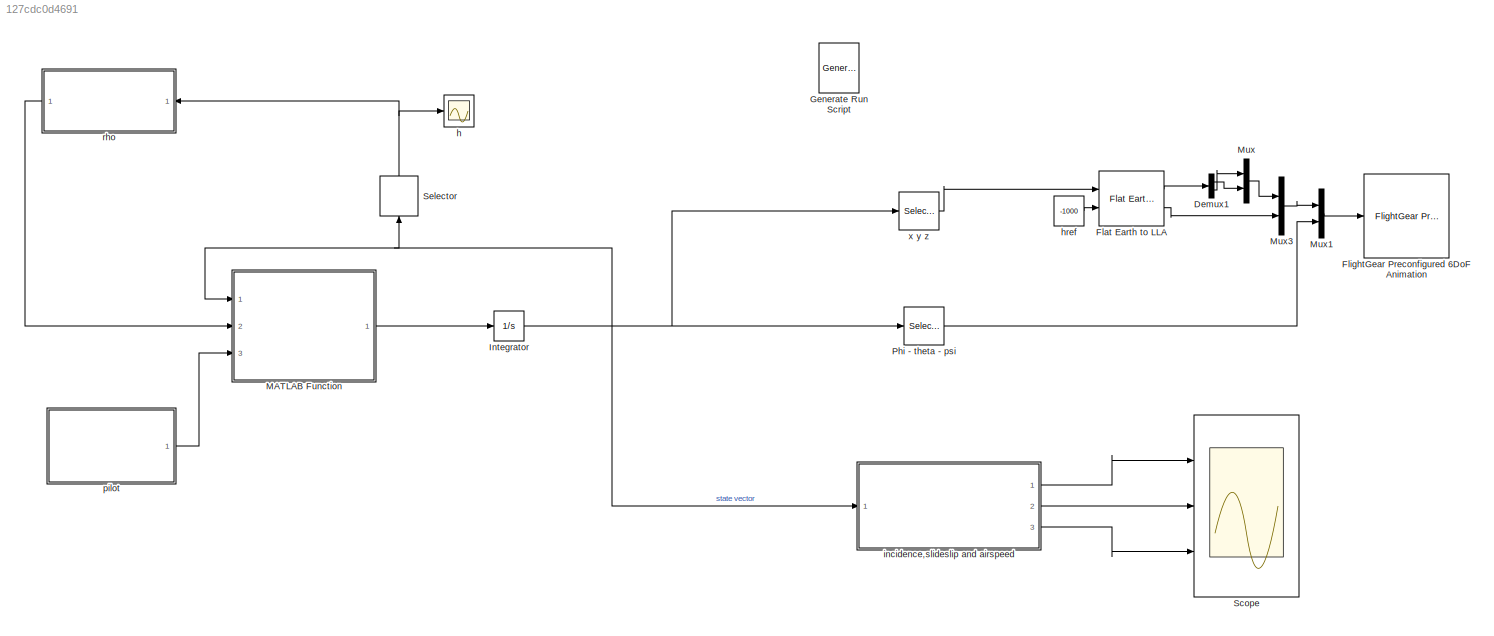
MODEL slx_127cdc0d4691
KIND model
CONFIG AbsTol = auto
CONFIG EnableMultiTasking = off
CONFIG FixedStep = auto
CONFIG MaxStep = auto
CONFIG MinStep = auto
CONFIG RelTol = 1e-3
CONFIG SampleTimeConstraint = Unconstrained
CONFIG Solver = VariableStepAuto
CONFIG SolverName = VariableStepAuto
CONFIG StartTime = 0.0
CONFIG StopTime = 1000
BLOCK [Demux] Demux1
  Outputs = 2
  Ports = [1, 2]
BLOCK [Reference] Flat Earth to LLA  REF=aerolibtransform2/Flat Earth to LLA
  Ports = [2, 2]
  SourceBlock = aerolibtransform2/Flat Earth to LLA
  SourceProductBaseCode = AE
  SourceType = Flat Earth to LLA
BLOCK [Reference] FlightGear Preconfigured 6DoF Animation  REF=aerolibfltsims/FlightGear
Preconfigured
6DoF Animation
  AttributesFormatString = Version Selected: %<xFlightGearVersion>
  Ports = [1]
  SourceBlock = aerolibfltsims/FlightGear\nPreconfigured\n6DoF Animation
  SourceProductBaseCode = AE
  SourceType = FlightGearQuick6DoFAnimation
BLOCK [Reference] Generate Run Script  REF=aerolibfltsims/Generate
Run Script
  Ports = []
  SourceBlock = aerolibfltsims/Generate\nRun Script
  SourceProductBaseCode = AE
  SourceType = Generate FlightGear Run Script
BLOCK [Integrator] Integrator
  InitialCondition = [0, 0, 0, 0, 0.1919, 0, 34.2142, -0.7233, 7.3394, 0, 0,609.6]
  Ports = [1, 1]
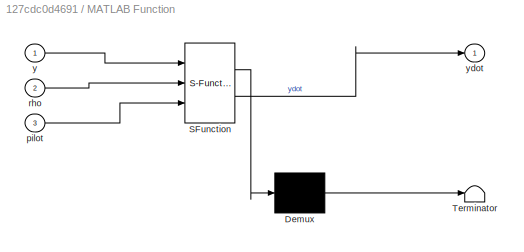
BLOCK [SubSystem] MATLAB Function
  ErrorFcn = Stateflow.Translate.translate
  PermitHierarchicalResolution = ExplicitOnly
  Ports = [3, 1]
  RequestExecContextInheritance = off
  SFBlockType = MATLAB Function
  TreatAsAtomicUnit = on
BLOCK [Demux] MATLAB Function/ Demux 
  Outputs = 1
  Ports = [1, 1]
BLOCK [S-Function] MATLAB Function/ SFunction 
  EnableBusSupport = on
  FunctionName = sf_sfun
  PortCounts = [3 2]
  Ports = [3, 2]
  SFcnIsStateOwnerBlock = off
  SFunctionDeploymentMode = off
  Tag = Stateflow S-Function 2
BLOCK [Terminator] MATLAB Function/ Terminator 
BLOCK [Inport] MATLAB Function/pilot
  Port = 3
BLOCK [Inport] MATLAB Function/rho
  Port = 2
BLOCK [Inport] MATLAB Function/y
BLOCK [Outport] MATLAB Function/ydot
BLOCK [Mux] Mux
  DisplayOption = bar
  Inputs = 2
  Ports = [2, 1]
BLOCK [Mux] Mux1
  DisplayOption = bar
  Inputs = 2
  Ports = [2, 1]
BLOCK [Mux] Mux3
  DisplayOption = bar
  Inputs = 2
  Ports = [2, 1]
BLOCK [Selector] Phi - theta - psi
  IndexOptions = Index vector (dialog)
  Indices = [4:6]
  InputPortWidth = 12
  OutputSizes = 1
  Ports = [1, 1]
BLOCK [Scope] Scope
  Floating = off
  NumInputPorts = 3
  Ports = [3]
  ScopeSpecificationString = Simulink.scopes.TimeScopeBlockCfg('CurrentConfiguration', extmgr.ConfigurationSet(extmgr.Configuration('Core','General UI',true),extmgr.Configuration('Core','Source UI',true),extmgr.Configuration('Sources','WiredSimulink',true,'DataLoggingVariableName','ScopeData1'),extmgr.Configuration('Visuals','Time Domain',true,'SerializedDisplays',{struct('MinYLimReal','6.276','MaxYLimReal','12.9204','YLabelR...<+2838ch>
BLOCK [Selector] Selector
  IndexOptions = Index vector (dialog)
  Indices = [12]
  InputPortWidth = 12
  NameLocation = right
  OutputSizes = 1
  Ports = [1, 1]
BLOCK [Scope] h
  Floating = off
  NumInputPorts = 1
  Ports = [1]
  ScopeSpecificationString = Simulink.scopes.TimeScopeBlockCfg('CurrentConfiguration', extmgr.ConfigurationSet(extmgr.Configuration('Core','General UI',true),extmgr.Configuration('Core','Source UI',true),extmgr.Configuration('Sources','WiredSimulink',true),extmgr.Configuration('Visuals','Time Domain',true),extmgr.Configuration('Tools','Plot Navigation',true),extmgr.Configuration('Tools','Measurements',true)),'Version','2020a'...<+1ch>
BLOCK [Constant] href
  Value = -1000
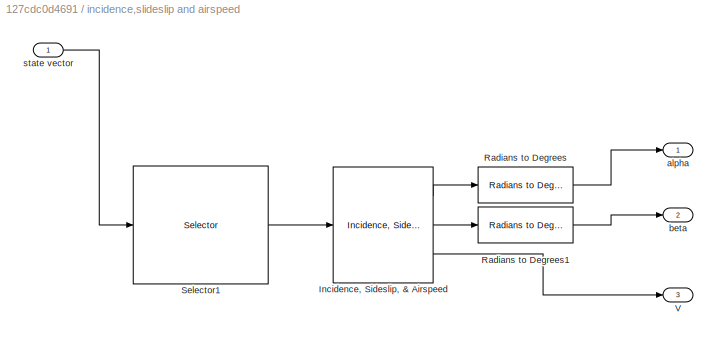
BLOCK [SubSystem] incidence,slideslip and airspeed
  Ports = [1, 3]
  RequestExecContextInheritance = off
BLOCK [Reference] incidence,slideslip and airspeed/Incidence, Sideslip, & Airspeed  REF=aerolibasang/Incidence, Sideslip,
& Airspeed
  Ports = [1, 3]
  SourceBlock = aerolibasang/Incidence, Sideslip,\n& Airspeed
  SourceProductBaseCode = AE
  SourceType = Incidence,Sideslip,&Airspeed
BLOCK [Reference] incidence,slideslip and airspeed/Radians to Degrees  REF=simulink_extras/Transformations/Radians
to Degrees
  Ports = [1, 1]
  SourceBlock = simulink_extras/Transformations/Radians\nto Degrees
  SourceProductBaseCode = SL
  SourceType = RadiansToDegrees
BLOCK [Reference] incidence,slideslip and airspeed/Radians to Degrees1  REF=simulink_extras/Transformations/Radians
to Degrees
  Ports = [1, 1]
  SourceBlock = simulink_extras/Transformations/Radians\nto Degrees
  SourceProductBaseCode = SL
  SourceType = RadiansToDegrees
BLOCK [Selector] incidence,slideslip and airspeed/Selector1
  IndexOptions = Index vector (dialog)
  Indices = [7,8,9]
  InputPortWidth = 12
  OutputSizes = 1
  Ports = [1, 1]
BLOCK [Outport] incidence,slideslip and airspeed/V
  Port = 3
BLOCK [Outport] incidence,slideslip and airspeed/alpha
BLOCK [Outport] incidence,slideslip and airspeed/beta
  Port = 2
BLOCK [Inport] incidence,slideslip and airspeed/state vector
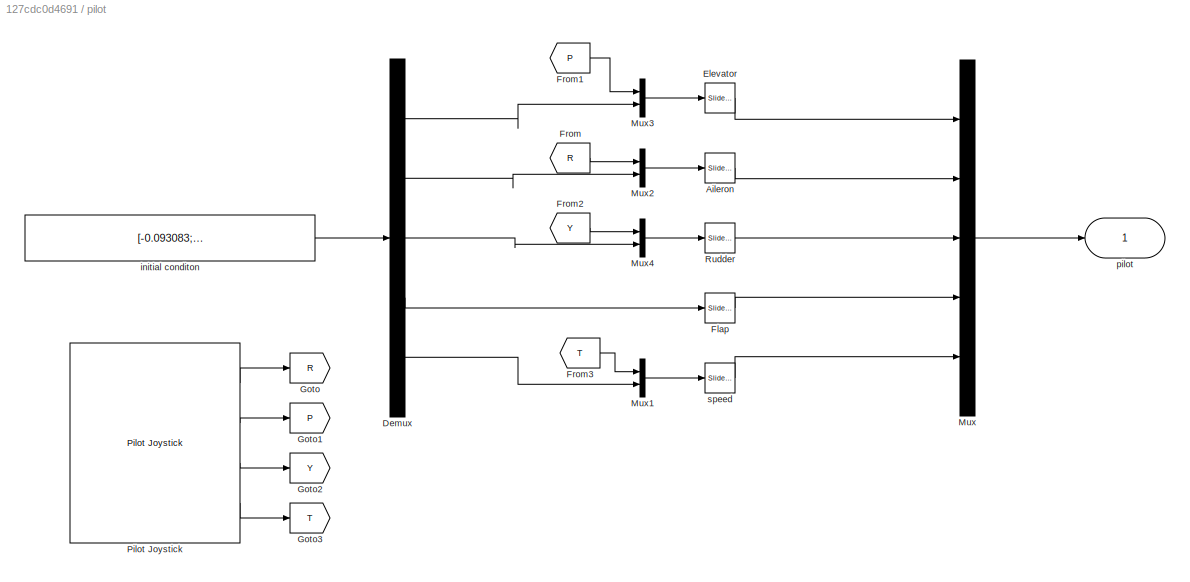
BLOCK [SubSystem] pilot
  Ports = [0, 1]
  RequestExecContextInheritance = off
BLOCK [Reference] pilot/Aileron  REF=simulink/Math
Operations/Slider
Gain
  Ports = [1, 1]
  SourceBlock = simulink/Math\nOperations/Slider\nGain
  SourceProductBaseCode = SL
  SourceType = Slider Gain
BLOCK [Demux] pilot/Demux
  Outputs = 5
  Ports = [1, 5]
BLOCK [Reference] pilot/Elevator  REF=simulink/Math
Operations/Slider
Gain
  Ports = [1, 1]
  SourceBlock = simulink/Math\nOperations/Slider\nGain
  SourceProductBaseCode = SL
  SourceType = Slider Gain
BLOCK [Reference] pilot/Flap  REF=simulink/Math
Operations/Slider
Gain
  Ports = [1, 1]
  SourceBlock = simulink/Math\nOperations/Slider\nGain
  SourceProductBaseCode = SL
  SourceType = Slider Gain
BLOCK [From] pilot/From
  Commented = on
  GotoTag = R
BLOCK [From] pilot/From1
  Commented = on
  GotoTag = P
BLOCK [From] pilot/From2
  Commented = on
  GotoTag = Y
BLOCK [From] pilot/From3
  Commented = on
  GotoTag = T
BLOCK [Goto] pilot/Goto
  Commented = on
  GotoTag = R
BLOCK [Goto] pilot/Goto1
  Commented = on
  GotoTag = P
BLOCK [Goto] pilot/Goto2
  Commented = on
  GotoTag = Y
BLOCK [Goto] pilot/Goto3
  Commented = on
  GotoTag = T
BLOCK [Mux] pilot/Mux
  DisplayOption = bar
  Inputs = 5
  Ports = [5, 1]
BLOCK [Mux] pilot/Mux1
  DisplayOption = bar
  Inputs = 2
  Ports = [2, 1]
BLOCK [Mux] pilot/Mux2
  DisplayOption = bar
  Inputs = 2
  Ports = [2, 1]
BLOCK [Mux] pilot/Mux3
  DisplayOption = bar
  Inputs = 2
  Ports = [2, 1]
BLOCK [Mux] pilot/Mux4
  DisplayOption = bar
  Inputs = 2
  Ports = [2, 1]
BLOCK [Reference] pilot/Pilot Joystick  REF=aerolibanimutils/Pilot Joystick
  Commented = on
  Ports = [0, 4]
  SourceBlock = aerolibanimutils/Pilot Joystick
  SourceProductBaseCode = AE
  SourceType = PilotJoystick
BLOCK [Reference] pilot/Rudder  REF=simulink/Math
Operations/Slider
Gain
  Ports = [1, 1]
  SourceBlock = simulink/Math\nOperations/Slider\nGain
  SourceProductBaseCode = SL
  SourceType = Slider Gain
BLOCK [Constant] pilot/initial conditon
  Value = [-0.093083; 0.0096242; -0.049242; 0; 1800]
BLOCK [Outport] pilot/pilot
BLOCK [Reference] pilot/speed  REF=simulink/Math
Operations/Slider
Gain
  Ports = [1, 1]
  SourceBlock = simulink/Math\nOperations/Slider\nGain
  SourceProductBaseCode = SL
  SourceType = Slider Gain
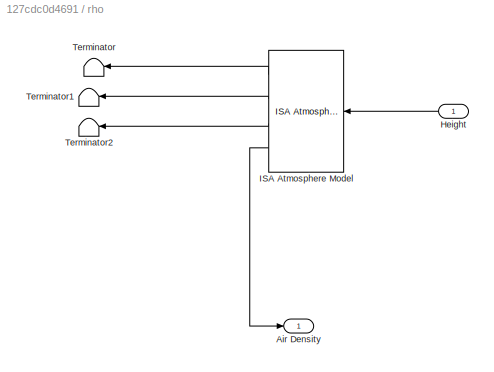
BLOCK [SubSystem] rho
  NameLocation = top
  Ports = [1, 1]
  RequestExecContextInheritance = off
BLOCK [Outport] rho/Air Density
BLOCK [Inport] rho/Height
BLOCK [Reference] rho/ISA Atmosphere Model  REF=aerolibatmos2/ISA Atmosphere Model
  NameLocation = top
  Ports = [1, 4]
  SourceBlock = aerolibatmos2/ISA Atmosphere Model
  SourceProductBaseCode = AE
  SourceType = International Standard Atmosphere Model
BLOCK [Terminator] rho/Terminator
  NameLocation = top
BLOCK [Terminator] rho/Terminator1
  NameLocation = top
BLOCK [Terminator] rho/Terminator2
  NameLocation = top
BLOCK [Selector] x y z
  IndexOptions = Index vector (dialog)
  Indices = [10,11,12]
  InputPortWidth = 12
  OutputSizes = 1
  Ports = [1, 1]
LINE Demux1:1 -> Mux:2
LINE Demux1:2 -> Mux:1
LINE Flat Earth to LLA:1 -> Demux1:1
LINE Flat Earth to LLA:2 -> Mux3:2
NET Integrator:1 -> MATLAB Function:1, Phi - theta - psi:1, Selector:1, incidence,slideslip and airspeed:1, x y z:1
LINE MATLAB Function:1 -> Integrator:1
LINE Mux1:1 -> FlightGear Preconfigured 6DoF Animation:1
LINE Mux3:1 -> Mux1:1
LINE Mux:1 -> Mux3:1
LINE Phi - theta - psi:1 -> Mux1:2
NET Selector:1 -> h:1, rho:1
LINE href:1 -> Flat Earth to LLA:2
LINE incidence,slideslip and airspeed/Incidence, Sideslip, & Airspeed:1 -> incidence,slideslip and airspeed/Radians to Degrees:1
LINE incidence,slideslip and airspeed/Incidence, Sideslip, & Airspeed:2 -> incidence,slideslip and airspeed/Radians to Degrees1:1
LINE incidence,slideslip and airspeed/Incidence, Sideslip, & Airspeed:3 -> incidence,slideslip and airspeed/V:1
LINE incidence,slideslip and airspeed/Radians to Degrees1:1 -> incidence,slideslip and airspeed/beta:1
LINE incidence,slideslip and airspeed/Radians to Degrees:1 -> incidence,slideslip and airspeed/alpha:1
LINE incidence,slideslip and airspeed/Selector1:1 -> incidence,slideslip and airspeed/Incidence, Sideslip, & Airspeed:1
LINE incidence,slideslip and airspeed/state vector:1 -> incidence,slideslip and airspeed/Selector1:1
LINE incidence,slideslip and airspeed:1 -> Scope:1
LINE incidence,slideslip and airspeed:2 -> Scope:2
LINE incidence,slideslip and airspeed:3 -> Scope:3
LINE pilot/Aileron:1 -> pilot/Mux:2
LINE pilot/Demux:1 -> pilot/Mux3:2
LINE pilot/Demux:2 -> pilot/Mux2:2
LINE pilot/Demux:3 -> pilot/Mux4:2
LINE pilot/Demux:4 -> pilot/Flap:1
LINE pilot/Demux:5 -> pilot/Mux1:2
LINE pilot/Elevator:1 -> pilot/Mux:1
LINE pilot/Flap:1 -> pilot/Mux:4
LINE pilot/From1:1 -> pilot/Mux3:1
LINE pilot/From2:1 -> pilot/Mux4:1
LINE pilot/From3:1 -> pilot/Mux1:1
LINE pilot/From:1 -> pilot/Mux2:1
LINE pilot/Mux1:1 -> pilot/speed:1
LINE pilot/Mux2:1 -> pilot/Aileron:1
LINE pilot/Mux3:1 -> pilot/Elevator:1
LINE pilot/Mux4:1 -> pilot/Rudder:1
LINE pilot/Mux:1 -> pilot/pilot:1
LINE pilot/Pilot Joystick:1 -> pilot/Goto:1
LINE pilot/Pilot Joystick:2 -> pilot/Goto1:1
LINE pilot/Pilot Joystick:3 -> pilot/Goto2:1
LINE pilot/Pilot Joystick:4 -> pilot/Goto3:1
LINE pilot/Rudder:1 -> pilot/Mux:3
LINE pilot/initial conditon:1 -> pilot/Demux:1
LINE pilot/speed:1 -> pilot/Mux:5
LINE pilot:1 -> MATLAB Function:3
LINE rho/Height:1 -> rho/ISA Atmosphere Model:1
LINE rho/ISA Atmosphere Model:1 -> rho/Terminator:1
LINE rho/ISA Atmosphere Model:2 -> rho/Terminator1:1
LINE rho/ISA Atmosphere Model:3 -> rho/Terminator2:1
LINE rho/ISA Atmosphere Model:4 -> rho/Air Density:1
LINE rho:1 -> MATLAB Function:2
LINE x y z:1 -> Flat Earth to LLA:1
note: NET lines group one-source signal fan-out (src -> all destinations, sorted); 1:1 wires keep LINE
CHART MATLAB Function states=1 transitions=1
  STATE_LABEL 'eML_blk_kernel()'
  STATE_LABEL "SCRIPT:\nfunction ydot = fcn(y, rho, pilot)\n\n    Ix = 5368.39; Iy = 6.92893e3; Iz = 11158.75;\n    Ixy = 0; Ixz = 1.1764e2; Iyz = 0;\n    m = 2288.231; g = 9.81;\n    \n    data = load('dhc2_vars.mat');    \n    Delv = pilot(1); Dail = pilot(2); Drud = pilot(3); Dflap = pilot(4);\n    n = pilot(5); Pz = 20;\n   \n    p = y(1); q = y(2); r = y(3); phi = y(4); theta = y(5); psi = y(6);\n    u = y(7); v = y(8)...<+3188ch>"
CHART  states=0 transitions=0
